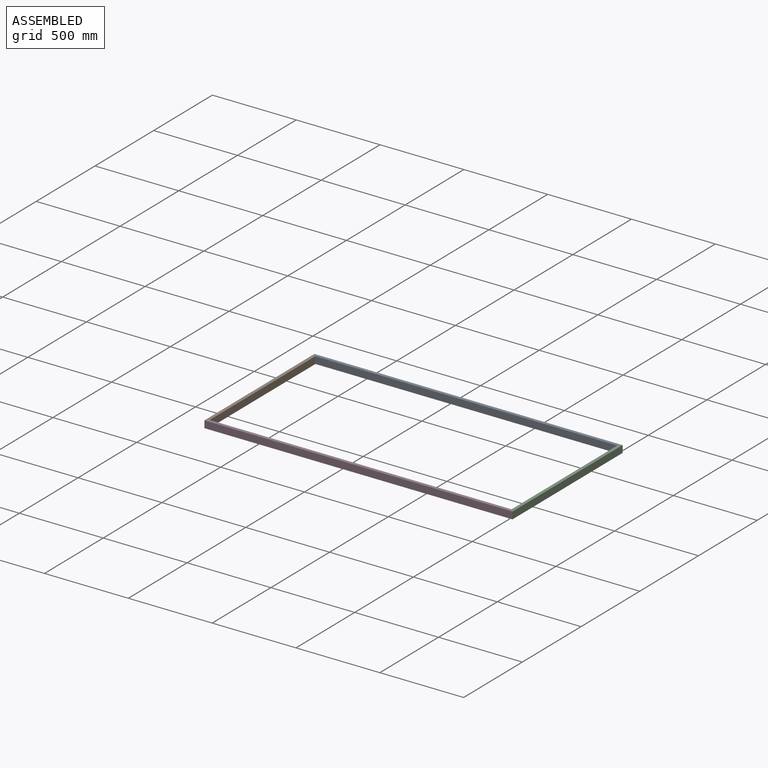
[diagram: assembled view]
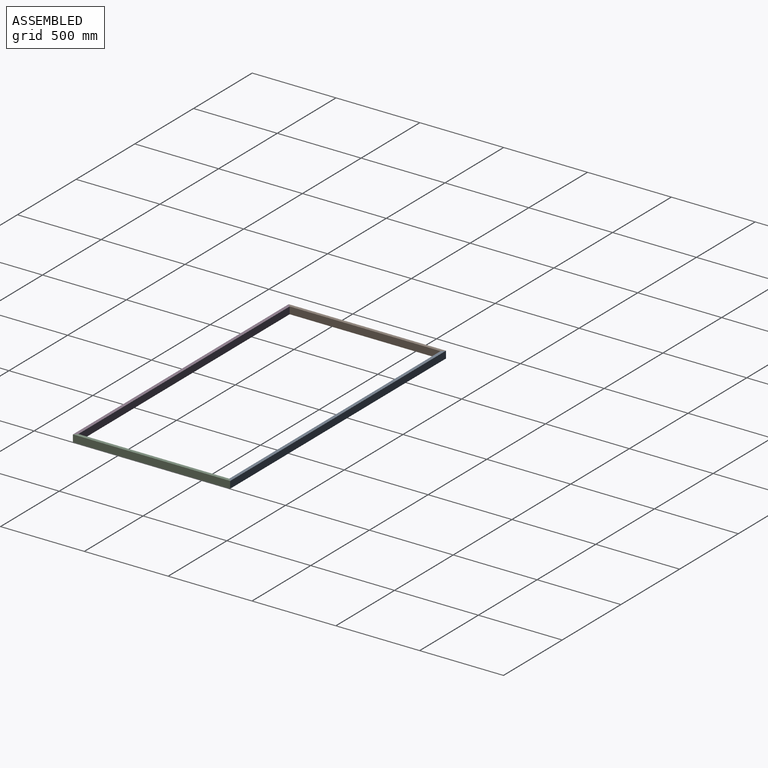
[diagram: assembled view, second angle]
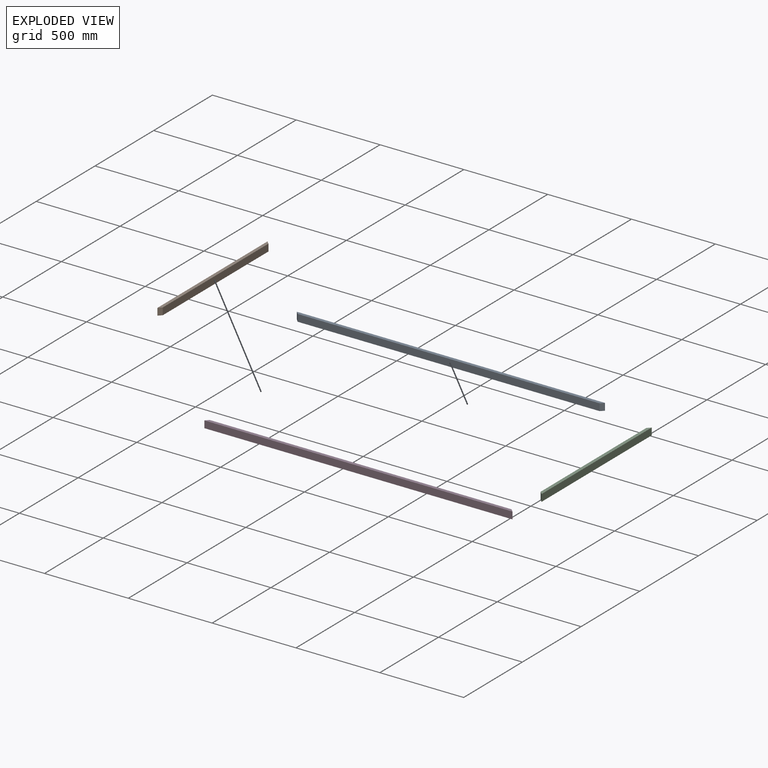
[diagram: exploded view]
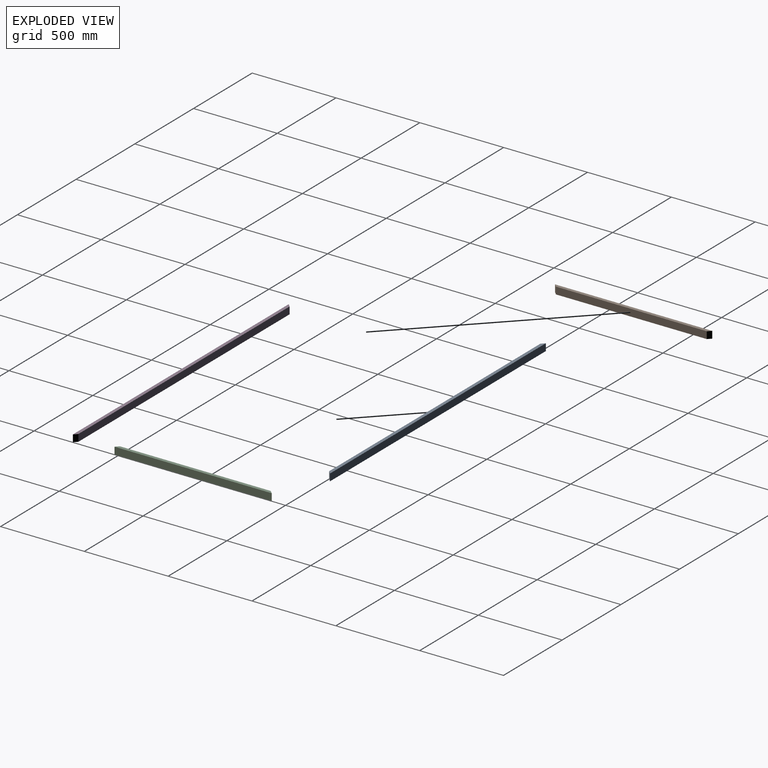
[diagram: exploded view, second angle]
ASSEMBLY  parts=4 mates=3
PART A: 6 faces, bbox 1838x19x42 mm
  f0: plane 1800x42mm, normal (0,1,0), area 75600mm2, adj f1,f3,f4,f5
  f1: plane 42x19mm, normal (-0.71,0.71,0), area 1128.5mm2, adj f0,f2,f4,f5
  f2: plane 1838x42mm, normal (0,-1,0), area 77196mm2, adj f1,f3,f4,f5
  f3: plane 42x19mm, normal (0.71,0.71,0), area 1128.5mm2, adj f0,f2,f4,f5
  f4: plane 1838x19mm, normal (0,0,1), area 34561mm2, adj f0,f1,f2,f3
  f5: plane 1838x19mm, normal (0,0,-1), area 34561mm2, adj f0,f1,f2,f3
PART B: 6 faces, bbox 19x938x42 mm
  f0: plane 900x42mm, normal (1,0,0), area 37800mm2, adj f1,f3,f4,f5
  f1: plane 42x19mm, normal (0.71,0.71,0), area 1128.5mm2, adj f0,f2,f4,f5
  f2: plane 938x42mm, normal (-1,0,0), area 39396mm2, adj f1,f3,f4,f5
  f3: plane 42x19mm, normal (0.71,-0.71,0), area 1128.5mm2, adj f0,f2,f4,f5
  f4: plane 938x19mm, normal (0,0,1), area 17461mm2, adj f0,f1,f2,f3
  f5: plane 938x19mm, normal (0,0,-1), area 17461mm2, adj f0,f1,f2,f3
PART C: same geometry as B
PART D: same geometry as A
PLACE A rot(axis=(0,0,1),180deg) t=(1478.77,1227.43,-152.39)mm
PLACE B t=(-246.84,287.83,-152.39)mm
PLACE C rot(axis=(0,0,1),180deg) t=(1514.43,1187.83,-152.39)mm
PLACE D t=(-211.18,248.23,-152.39)mm
MATE fastened B.f3 <-> D.f1  axis (0.71,-0.71,0) through (-275.71,278.33,-131.39)mm
MATE fastened C.f1 <-> D.f3  axis (-0.71,-0.71,0) through (1543.29,278.33,-131.39)mm
MATE fastened A.f1 <-> C.f3  axis (0.71,-0.71,0) through (1543.29,1197.33,-131.39)mm
